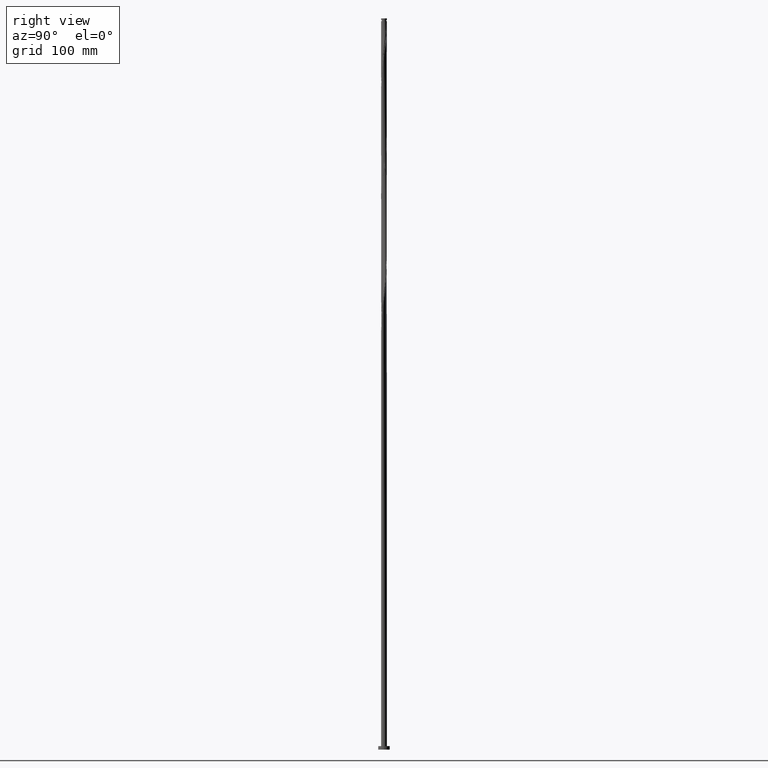
[diagram: clean part render]
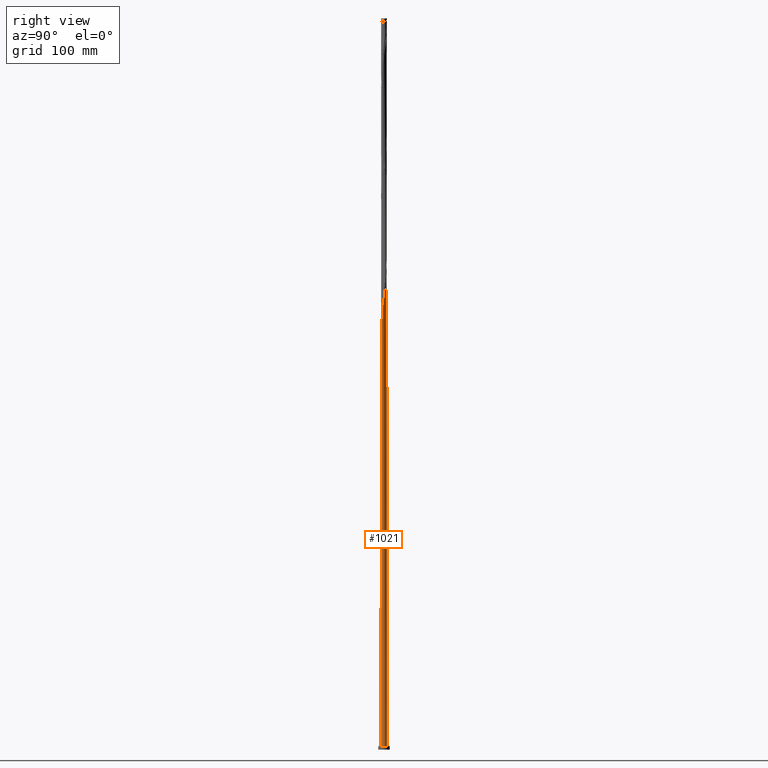
[diagram: same view with one face highlighted and labeled with its STEP entity id]
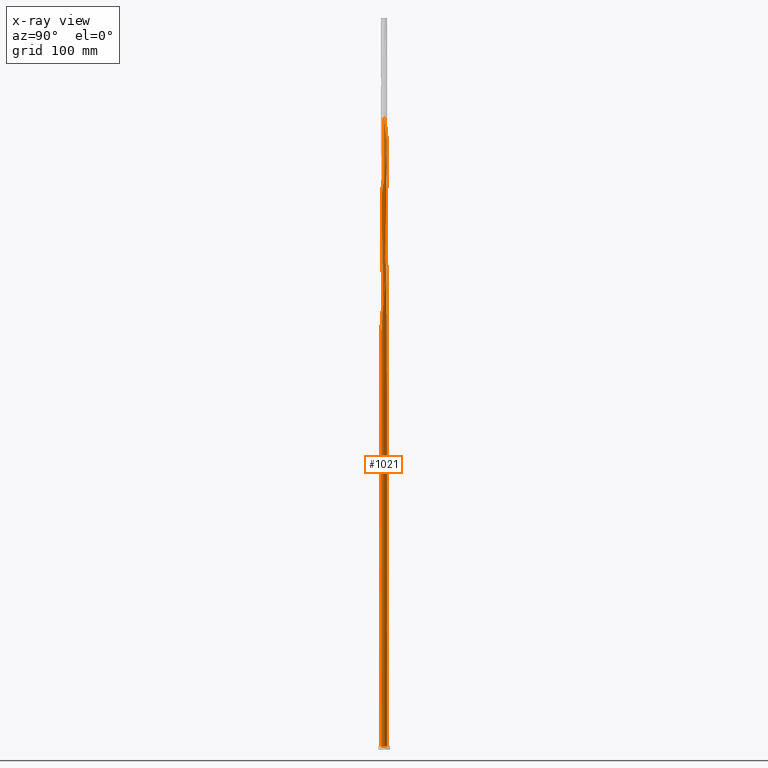
[diagram: x-ray of the same camera — body ghosted, the highlighted face saturated]
A machine part, right view. The second image highlights one B-rep face of the part: STEP entity #1021.
The next image is the same camera in x-ray: the body ghosted, the highlighted face saturated — about 0% of this face is hidden behind the body in this view.
In plain terms, the highlighted cylindrical surface (bore or boss wall) has radius 2.5 mm, axis along (-0, -0, -1).
Its self-contained STEP definition (entity closure, byte-faithful):
#2 = CARTESIAN_POINT ( 'NONE',  ( 2.326795562993845046, 0.9432329266279372293, 499.4139844700088133 ) ) ;
#4 = CARTESIAN_POINT ( 'NONE',  ( -2.113858851430209462, 1.354720156369233486, 332.6492785876559992 ) ) ;
#17 = CARTESIAN_POINT ( 'NONE',  ( 1.481733309335118154, 2.026852818003751278, 508.6786903523619117 ) ) ;
#30 = CARTESIAN_POINT ( 'NONE',  ( 1.282902032661899838, 2.145731198121513472, 510.2228079994205245 ) ) ;
#33 = DIRECTION ( 'NONE',  ( 1.000000000000000000, 0.000000000000000000, 0.000000000000000000 ) ) ;
#36 = VERTEX_POINT ( 'NONE', #830 ) ;
#38 = CIRCLE ( 'NONE', #1874, 2.500000000000000000 ) ;
#53 = DIRECTION ( 'NONE',  ( -0.000000000000000000, -0.000000000000000000, -1.000000000000000000 ) ) ;
#87 = CARTESIAN_POINT ( 'NONE',  ( 0.000000000000000000, 0.000000000000000000, 3.000000000000000000 ) ) ;
#96 = CARTESIAN_POINT ( 'NONE',  ( 1.153898870654155751, -2.229839308592888703, 369.7081021170677104 ) ) ;
#106 = CARTESIAN_POINT ( 'NONE',  ( -2.254949153017931085, 1.079446301259925134, 433.0169256464794216 ) ) ;
#114 = DIRECTION ( 'NONE',  ( 0.000000000000000000, -0.000000000000000000, -1.000000000000000000 ) ) ;
#116 = CARTESIAN_POINT ( 'NONE',  ( -0.6494914732466116059, -2.425247775387680882, 357.3551609405970453 ) ) ;
#127 = CARTESIAN_POINT ( 'NONE',  ( -1.481733309335118820, -2.026852818003750833, 351.1786903523617411 ) ) ;
#138 = CARTESIAN_POINT ( 'NONE',  ( 1.543983447371046758, -1.979843695872774090, 372.7963374111852204 ) ) ;
#148 = CARTESIAN_POINT ( 'NONE',  ( -1.481733309335118820, -2.026852818003750833, 456.1786903523616843 ) ) ;
#155 = CARTESIAN_POINT ( 'NONE',  ( -0.8667811146176461756, -2.344928676813478052, 460.8110432935382619 ) ) ;
#157 = CARTESIAN_POINT ( 'NONE',  ( -0.1927945373622882430, 2.503297068309350948, 317.2081021170676536 ) ) ;
#164 = CARTESIAN_POINT ( 'NONE',  ( 0.8667811146176472858, 2.344928676813478052, 513.3110432935382050 ) ) ;
#177 = CARTESIAN_POINT ( 'NONE',  ( 1.655335260655246721, 1.873463416998434106, 507.1345727053029577 ) ) ;
#178 = CARTESIAN_POINT ( 'NONE',  ( 0.03883662394902820392, 2.499698325126503029, 315.6639844700087565 ) ) ;
#191 = CARTESIAN_POINT ( 'NONE',  ( 2.414902095937017101, -0.6467208571238620696, 488.6051609405971021 ) ) ;
#214 = DIRECTION ( 'NONE',  ( 0.000000000000000000, 0.000000000000000000, 1.000000000000000000 ) ) ;
#225 = CARTESIAN_POINT ( 'NONE',  ( -2.500000000000004441, -2.838361252476003155E-16, 335.4775404011971887 ) ) ;
#227 = CARTESIAN_POINT ( 'NONE',  ( -2.500000000000004441, 1.165221987858569888E-15, 545.4775404011970750 ) ) ;
#253 = DIRECTION ( 'NONE',  ( 1.000000000000000000, 0.000000000000000000, 0.000000000000000000 ) ) ;
#265 = CARTESIAN_POINT ( 'NONE',  ( 1.282902032661899838, 2.145731198121513472, 405.2228079994205814 ) ) ;
#277 = CARTESIAN_POINT ( 'NONE',  ( 0.4974937185533176431, -2.450000000000002398, 365.0757491758913034 ) ) ;
#286 = EDGE_CURVE ( 'NONE', #36, #577, #684, .T. ) ;
#287 = CARTESIAN_POINT ( 'NONE',  ( -2.492618444334789185, 0.1919721098546209870, 439.1933962347147826 ) ) ;
#298 = CARTESIAN_POINT ( 'NONE',  ( -0.03883662394902854392, 2.499698325126506582, 414.4875138817736229 ) ) ;
#305 = CARTESIAN_POINT ( 'NONE',  ( -2.500000000000004441, 0.09612796971919773670, 334.8341346491375248 ) ) ;
#307 = CARTESIAN_POINT ( 'NONE',  ( 0.9392092612502228599, -2.316869863324618084, 368.1639844700088133 ) ) ;
#313 = CARTESIAN_POINT ( 'NONE',  ( -2.414902095937017101, 0.6467208571238628467, 331.1051609405970453 ) ) ;
#315 = CARTESIAN_POINT ( 'NONE',  ( -0.9392092612502235260, 2.316869863324618084, 525.6639844700086996 ) ) ;
#316 = ORIENTED_EDGE ( 'NONE', *, *, #1455, .F. ) ;
#317 = CARTESIAN_POINT ( 'NONE',  ( -2.220327207212025034, 1.148976541498583970, 334.1933962347147826 ) ) ;
#318 =( BOUNDED_CURVE ( )  B_SPLINE_CURVE ( 2, ( #1762, #1101, #961, #353, #980, #1465, #317, #4, #1921, #493, #1290, #1941, #952, #1792, #1594, #361, #988, #157, #178, #2063, #1259 ),
 .UNSPECIFIED., .F., .T. ) 
 B_SPLINE_CURVE_WITH_KNOTS ( ( 3, 2, 2, 2, 2, 2, 2, 2, 2, 2, 3 ),
 ( 0.9295293573162904943, 0.9338235294117647189, 0.9411764705882352811, 0.9485294117647058432, 0.9558823529411765163, 0.9632352941176470784, 0.9705882352941176405, 0.9779411764705882026, 0.9852941176470588758, 0.9926470588235294379, 1.000000000000000000 ),
 .UNSPECIFIED. ) 
 CURVE ( )  GEOMETRIC_REPRESENTATION_ITEM ( )  RATIONAL_B_SPLINE_CURVE ( ( 0.9072066346053750951, 0.9068261157891421842, 0.9090909090910135326, 0.9052128875410444531, 0.9090909090910135326, 0.9052128875410444531, 0.9090909090910135326, 0.9052128875410444531, 0.9090909090910135326, 0.9052128875410444531, 0.9090909090910135326, 0.9052128875410444531, 0.9090909090910135326, 0.9052128875410444531, 0.9090909090910135326, 0.9052128875410444531, 0.9090909090910135326, 0.9052128875410444531, 0.9090909090910135326, 0.9052128875410444531, 0.9090909090910135326 ) ) 
 REPRESENTATION_ITEM ( '' )  );
#326 = CARTESIAN_POINT ( 'NONE',  ( -0.6494914732466116059, -2.425247775387680882, 462.3551609405969884 ) ) ;
#340 = CARTESIAN_POINT ( 'NONE',  ( -1.153898870654155751, 2.229839308592888703, 527.2081021170675967 ) ) ;
#346 = LINE ( 'NONE', #1596, #1380 ) ;
#352 = CARTESIAN_POINT ( 'NONE',  ( 0.03883662394902780840, -2.499698325126506582, 466.9875138817735660 ) ) ;
#353 = CARTESIAN_POINT ( 'NONE',  ( -2.460496042343400358, 0.4996250308535268303, 338.8257491758912465 ) ) ;
#361 = CARTESIAN_POINT ( 'NONE',  ( -0.6494914732466096075, 2.425247775387677329, 320.2963374111853341 ) ) ;
#365 = DIRECTION ( 'NONE',  ( 0.000000000000000000, 0.000000000000000000, 1.000000000000000000 ) ) ;
#371 = CARTESIAN_POINT ( 'NONE',  ( 0.000000000000000000, 0.000000000000000000, 630.0000000000000000 ) ) ;
#411 = CYLINDRICAL_SURFACE ( 'NONE', #940, 2.500000000000000000 ) ;
#421 = CARTESIAN_POINT ( 'NONE',  ( 0.6494914732466108287, 2.425247775387680882, 409.8551609405971021 ) ) ;
#423 = CIRCLE ( 'NONE', #1559, 2.500000000000000000 ) ;
#429 = CARTESIAN_POINT ( 'NONE',  ( 0.000000000000000000, 0.000000000000000000, 312.5757491758911897 ) ) ;
#434 = CARTESIAN_POINT ( 'NONE',  ( -1.712736483481400063, 1.821135288261635621, 426.8404550582440606 ) ) ;
#444 = CARTESIAN_POINT ( 'NONE',  ( -1.084070755988681523, -2.264609578239276111, 354.2669256464794216 ) ) ;
#453 = CARTESIAN_POINT ( 'NONE',  ( 2.485451661177049854, 0.2693140173705520501, 389.7816315288324631 ) ) ;
#463 = CARTESIAN_POINT ( 'NONE',  ( -2.414902095937017101, 0.6467208571238628467, 436.1051609405970453 ) ) ;
#468 = CARTESIAN_POINT ( 'NONE',  ( -1.881489519591753146, 1.662426880650496708, 323.3845727053029577 ) ) ;
#474 = CARTESIAN_POINT ( 'NONE',  ( 2.354974583215147632, -0.8704944906509075597, 487.0610432935381482 ) ) ;
#484 = CARTESIAN_POINT ( 'NONE',  ( -1.655335260655246277, -1.873463416998434328, 454.6345727053031283 ) ) ;
#492 = CARTESIAN_POINT ( 'NONE',  ( -2.354974583215148076, 0.8704944906509070046, 539.5610432935380913 ) ) ;
#493 = CARTESIAN_POINT ( 'NONE',  ( -1.828937211975369959, 1.720074015993116268, 329.5610432935383187 ) ) ;
#501 = CARTESIAN_POINT ( 'NONE',  ( 2.485451661177049854, 0.2693140173705520501, 494.7816315288323494 ) ) ;
#514 = CARTESIAN_POINT ( 'NONE',  ( -1.543983447371047202, 1.979843695872773646, 530.2963374111851635 ) ) ;
#517 = CARTESIAN_POINT ( 'NONE',  ( 0.000000000000000000, 0.000000000000000000, 3.000000000000000000 ) ) ;
#527 = CARTESIAN_POINT ( 'NONE',  ( -2.500000000000000000, 0.000000000000000000, 630.0000000000000000 ) ) ;
#536 =( BOUNDED_CURVE ( )  B_SPLINE_CURVE ( 2, ( #225, #862, #721, #701, #569, #1332, #1181, #550, #870, #1832, #1034, #127, #1081, #444, #1739, #116, #1396, #1373, #1410, #2033, #277, #1363, #307, #96, #1536, #138, #1061, #741, #1894, #1851, #2005, #750, #911, #1525, #1072, #931, #453, #1549, #2045, #770, #580, #2024, #1198, #1211, #592, #604, #265, #1572, #2016, #421, #1052, #759, #298, #1883, #1702, #616, #1220, #780, #1862, #902, #434, #1090, #1384, #1872, #106, #1711, #463, #1722, #287, #921, #1563, #1231, #1732, #625, #1241, #1583, #951, #1622, #484, #148, #1288, #792, #155, #326, #1138, #1920, #352, #1929, #960, #1464, #1612, #1422, #2052, #971, #1275, #1129, #979, #667, #1761, #474, #191, #1099, #1601, #1781, #501, #637, #1453, #2, #832, #799, #1249, #1257, #177, #17, #30, #1901, #164, #808, #1443, #817, #676, #658, #1266, #1940, #315, #340, #1592, #514, #1790, #942, #1749, #1431, #2061, #492, #1121, #1910, #649, #1772, #1110 ),
 .UNSPECIFIED., .F., .T. ) 
 B_SPLINE_CURVE_WITH_KNOTS ( ( 3, 2, 2, 2, 2, 2, 2, 2, 2, 2, 2, 2, 2, 2, 2, 2, 2, 2, 2, 2, 2, 2, 2, 2, 2, 2, 2, 2, 2, 2, 2, 2, 2, 2, 2, 2, 2, 2, 2, 2, 2, 2, 2, 2, 2, 2, 2, 2, 2, 2, 2, 2, 2, 2, 2, 2, 2, 2, 2, 2, 2, 2, 2, 2, 2, 2, 2, 2, 2, 3 ),
 ( 0.05452935731629057065, 0.05882352941176471894, 0.06617647058823528106, 0.07352941176470584317, 0.08088235294117651630, 0.08823529411764707842, 0.09558823529411764053, 0.1029411764705882026, 0.1102941176470588758, 0.1176470588235294379, 0.1250000000000000000, 0.1323529411764705621, 0.1397058823529411242, 0.1470588235294117974, 0.1544117647058823595, 0.1617647058823529216, 0.1691176470588234837, 0.1764705882352941568, 0.1838235294117647189, 0.1911764705882352811, 0.1985294117647058432, 0.2058823529411765163, 0.2132352941176470784, 0.2205882352941176405, 0.2279411764705882026, 0.2352941176470588758, 0.2426470588235294379, 0.2500000000000000000, 0.2573529411764705621, 0.2647058823529411242, 0.2720588235294117974, 0.2794117647058823595, 0.2867647058823529216, 0.2941176470588234837, 0.3014705882352941568, 0.3088235294117647189, 0.3161764705882352811, 0.3235294117647058432, 0.3308823529411765163, 0.3382352941176470784, 0.3455882352941176405, 0.3529411764705882026, 0.3602941176470588758, 0.3676470588235294379, 0.3750000000000000000, 0.3823529411764705621, 0.3897058823529411242, 0.3970588235294117974, 0.4044117647058823595, 0.4117647058823529216, 0.4191176470588234837, 0.4264705882352941568, 0.4338235294117647189, 0.4411764705882352811, 0.4485294117647058432, 0.4558823529411765163, 0.4632352941176470784, 0.4705882352941176405, 0.4779411764705882026, 0.4852941176470588758, 0.4926470588235294379, 0.5000000000000000000, 0.5073529411764705621, 0.5147058823529411242, 0.5220588235294116863, 0.5294117647058823595, 0.5367647058823529216, 0.5441176470588235947, 0.5514705882352941568, 0.5545293573162906053 ),
 .UNSPECIFIED. ) 
 CURVE ( )  GEOMETRIC_REPRESENTATION_ITEM ( )  RATIONAL_B_SPLINE_CURVE ( ( 0.9072066346053822006, 0.9068261157891492896, 0.9090909090910207491, 0.9052128875410516695, 0.9090909090910207491, 0.9052128875410516695, 0.9090909090910207491, 0.9052128875410516695, 0.9090909090910207491, 0.9052128875410516695, 0.9090909090910207491, 0.9052128875410516695, 0.9090909090910207491, 0.9052128875410516695, 0.9090909090910207491, 0.9052128875410516695, 0.9090909090910207491, 0.9052128875410516695, 0.9090909090910207491, 0.9052128875410516695, 0.9090909090910207491, 0.9052128875410516695, 0.9090909090910207491, 0.9052128875410516695, 0.9090909090910207491, 0.9052128875410516695, 0.9090909090910207491, 0.9052128875410516695, 0.9090909090910207491, 0.9052128875410516695, 0.9090909090910207491, 0.9052128875410516695, 0.9090909090910207491, 0.9052128875410516695, 0.9090909090910207491, 0.9052128875410516695, 0.9090909090910207491, 0.9052128875410516695, 0.9090909090910207491, 0.9052128875410516695, 0.9090909090910207491, 0.9052128875410516695, 0.9090909090910207491, 0.9052128875410516695, 0.9090909090910207491, 0.9052128875410516695, 0.9090909090910207491, 0.9052128875410516695, 0.9090909090910207491, 0.9052128875410516695, 0.9090909090910207491, 0.9052128875410516695, 0.9090909090910207491, 0.9052128875410516695, 0.9090909090910207491, 0.9052128875410516695, 0.9090909090910207491, 0.9052128875410516695, 0.9090909090910207491, 0.9052128875410516695, 0.9090909090910207491, 0.9052128875410516695, 0.9090909090910207491, 0.9052128875410516695, 0.9090909090910207491, 0.9052128875410516695, 0.9090909090910207491, 0.9052128875410516695, 0.9090909090910207491, 0.9052128875410516695, 0.9090909090910207491, 0.9052128875410516695, 0.9090909090910207491, 0.9052128875410516695, 0.9090909090910207491, 0.9052128875410516695, 0.9090909090910207491, 0.9052128875410516695, 0.9090909090910207491, 0.9052128875410516695, 0.9090909090910207491, 0.9052128875410516695, 0.9090909090910207491, 0.9052128875410516695, 0.9090909090910207491, 0.9052128875410516695, 0.9090909090910207491, 0.9052128875410516695, 0.9090909090910207491, 0.9052128875410516695, 0.9090909090910207491, 0.9052128875410516695, 0.9090909090910207491, 0.9052128875410516695, 0.9090909090910207491, 0.9052128875410516695, 0.9090909090910207491, 0.9052128875410516695, 0.9090909090910207491, 0.9052128875410516695, 0.9090909090910207491, 0.9052128875410516695, 0.9090909090910207491, 0.9052128875410516695, 0.9090909090910207491, 0.9052128875410516695, 0.9090909090910207491, 0.9052128875410516695, 0.9090909090910207491, 0.9052128875410516695, 0.9090909090910207491, 0.9052128875410516695, 0.9090909090910207491, 0.9052128875410516695, 0.9090909090910207491, 0.9052128875410516695, 0.9090909090910207491, 0.9052128875410516695, 0.9090909090910207491, 0.9052128875410516695, 0.9090909090910207491, 0.9052128875410516695, 0.9090909090910207491, 0.9052128875410516695, 0.9090909090910207491, 0.9052128875410516695, 0.9090909090910207491, 0.9052128875410516695, 0.9090909090910207491, 0.9052128875410516695, 0.9090909090910207491, 0.9052128875410516695, 0.9090909090910207491, 0.9052128875410516695, 0.9090909090910207491, 0.9052128875410516695, 0.9090909090910207491, 0.9074776808429229069, 0.9072066346053822006 ) ) 
 REPRESENTATION_ITEM ( '' )  );
#550 = CARTESIAN_POINT ( 'NONE',  ( -2.113858851430213459, -1.354720156369235484, 345.0022197641264938 ) ) ;
#555 = CARTESIAN_POINT ( 'NONE',  ( -0.4974937185533173101, 2.450000000000002398, 312.5757491758911897 ) ) ;
#561 = ORIENTED_EDGE ( 'NONE', *, *, #967, .F. ) ;
#565 = EDGE_CURVE ( 'NONE', #566, #1665, #423, .T. ) ;
#566 = VERTEX_POINT ( 'NONE', #1467 ) ;
#569 = CARTESIAN_POINT ( 'NONE',  ( -2.393645802668625144, -0.7214289787407315302, 340.3698668229502005 ) ) ;
#577 = VERTEX_POINT ( 'NONE', #1627 ) ;
#580 = CARTESIAN_POINT ( 'NONE',  ( 2.220327207212029030, 1.148976541498586190, 395.9581021170677104 ) ) ;
#592 = CARTESIAN_POINT ( 'NONE',  ( 1.655335260655246721, 1.873463416998434106, 402.1345727053029577 ) ) ;
#604 = CARTESIAN_POINT ( 'NONE',  ( 1.481733309335118154, 2.026852818003751278, 403.6786903523616843 ) ) ;
#608 = EDGE_CURVE ( 'NONE', #943, #1729, #346, .T. ) ;
#612 = CARTESIAN_POINT ( 'NONE',  ( -2.492618444334789185, 0.1919721098546209870, 334.1933962347148395 ) ) ;
#616 = CARTESIAN_POINT ( 'NONE',  ( -0.7245196518462911905, 2.403900418056346133, 419.1198668229500868 ) ) ;
#625 = CARTESIAN_POINT ( 'NONE',  ( -2.326795562993845046, -0.9432329266279370072, 446.9139844700088702 ) ) ;
#637 = CARTESIAN_POINT ( 'NONE',  ( 2.460496042343404799, 0.4996250308535267193, 496.3257491758913034 ) ) ;
#638 = ORIENTED_EDGE ( 'NONE', *, *, #1147, .T. ) ;
#649 = CARTESIAN_POINT ( 'NONE',  ( -2.492618444334789185, 0.1919721098546209870, 544.1933962347147826 ) ) ;
#658 = CARTESIAN_POINT ( 'NONE',  ( -0.2704677852603450394, 2.496099581943659995, 521.0316315288323494 ) ) ;
#667 = CARTESIAN_POINT ( 'NONE',  ( 2.154923722820714538, -1.288398111868943596, 483.9728079994205814 ) ) ;
#676 = CARTESIAN_POINT ( 'NONE',  ( -0.03883662394902854392, 2.499698325126506582, 519.4875138817735660 ) ) ;
#684 =( BOUNDED_CURVE ( )  B_SPLINE_CURVE ( 2, ( #555, #737, #887, #1357, #2002, #1205, #1579, #468, #1887, #1104, #1569, #948, #313, #1543, #612, #305, #1086 ),
 .UNSPECIFIED., .F., .T. ) 
 B_SPLINE_CURVE_WITH_KNOTS ( ( 3, 2, 2, 2, 2, 2, 2, 2, 3 ),
 ( 0.000000000000000000, 0.007352941176470562112, 0.01470588235294112422, 0.02205882352941179736, 0.02941176470588235947, 0.03676470588235291465, 0.04411764705882348370, 0.05147058823529415683, 0.05452935731629057065 ),
 .UNSPECIFIED. ) 
 CURVE ( )  GEOMETRIC_REPRESENTATION_ITEM ( )  RATIONAL_B_SPLINE_CURVE ( ( 0.9090909090910207491, 0.9052128875410516695, 0.9090909090910207491, 0.9052128875410516695, 0.9090909090910207491, 0.9052128875410516695, 0.9090909090910207491, 0.9052128875410516695, 0.9090909090910207491, 0.9052128875410516695, 0.9090909090910207491, 0.9052128875410516695, 0.9090909090910207491, 0.9052128875410516695, 0.9090909090910207491, 0.9074776808429230179, 0.9072066346053822006 ) ) 
 REPRESENTATION_ITEM ( '' )  );
#686 = CARTESIAN_POINT ( 'NONE',  ( -2.500000000000000000, 5.676722504952050684E-16, 342.1739579505852475 ) ) ;
#687 = DIRECTION ( 'NONE',  ( -0.000000000000000000, -0.000000000000000000, -1.000000000000000000 ) ) ;
#701 = CARTESIAN_POINT ( 'NONE',  ( -2.460496042343404799, -0.4996250308535269968, 338.8257491758912465 ) ) ;
#721 = CARTESIAN_POINT ( 'NONE',  ( -2.485451661177049854, -0.2693140173705516061, 337.2816315288323494 ) ) ;
#737 = CARTESIAN_POINT ( 'NONE',  ( -0.7245196518462911905, 2.403900418056346133, 314.1198668229499731 ) ) ;
#741 = CARTESIAN_POINT ( 'NONE',  ( 1.881489519591752924, -1.662426880650497152, 375.8845727053030714 ) ) ;
#750 = CARTESIAN_POINT ( 'NONE',  ( 2.354974583215147632, -0.8704944906509075597, 382.0610432935382619 ) ) ;
#757 = VERTEX_POINT ( 'NONE', #845 ) ;
#759 = CARTESIAN_POINT ( 'NONE',  ( 0.1927945373622899083, 2.503297068309353168, 412.9433962347147258 ) ) ;
#760 = ORIENTED_EDGE ( 'NONE', *, *, #1333, .F. ) ;
#770 = CARTESIAN_POINT ( 'NONE',  ( 2.326795562993845046, 0.9432329266279372293, 394.4139844700088702 ) ) ;
#780 = CARTESIAN_POINT ( 'NONE',  ( -1.153898870654155751, 2.229839308592888703, 422.2081021170675967 ) ) ;
#792 = CARTESIAN_POINT ( 'NONE',  ( -1.084070755988681523, -2.264609578239276111, 459.2669256464793079 ) ) ;
#799 = CARTESIAN_POINT ( 'NONE',  ( 2.113858851430213459, 1.354720156369234596, 502.5022197641264370 ) ) ;
#808 = CARTESIAN_POINT ( 'NONE',  ( 0.6494914732466108287, 2.425247775387680882, 514.8551609405971021 ) ) ;
#817 = CARTESIAN_POINT ( 'NONE',  ( 0.1927945373622899083, 2.503297068309353168, 517.9433962347147826 ) ) ;
#823 = DIRECTION ( 'NONE',  ( -0.000000000000000000, -0.000000000000000000, -1.000000000000000000 ) ) ;
#830 = CARTESIAN_POINT ( 'NONE',  ( -0.4974937185533173101, 2.450000000000002398, 312.5757491758911897 ) ) ;
#832 = CARTESIAN_POINT ( 'NONE',  ( 2.220327207212029030, 1.148976541498586190, 500.9581021170675967 ) ) ;
#845 = CARTESIAN_POINT ( 'NONE',  ( 0.4974937185533181982, 2.449999999999997957, 312.5757491758911897 ) ) ;
#862 = CARTESIAN_POINT ( 'NONE',  ( -2.500000000000004441, -0.1350499591981700609, 336.3814596332099427 ) ) ;
#870 = CARTESIAN_POINT ( 'NONE',  ( -1.971398031702793263, -1.537397086181176764, 346.5463374111853341 ) ) ;
#887 = CARTESIAN_POINT ( 'NONE',  ( -0.9392092612502235260, 2.316869863324618084, 315.6639844700088133 ) ) ;
#902 = CARTESIAN_POINT ( 'NONE',  ( -1.543983447371047202, 1.979843695872773646, 425.2963374111854478 ) ) ;
#911 = CARTESIAN_POINT ( 'NONE',  ( 2.414902095937017101, -0.6467208571238620696, 383.6051609405971021 ) ) ;
#921 = CARTESIAN_POINT ( 'NONE',  ( -2.510407280010694908, -0.03900300388757643733, 440.7375138817735660 ) ) ;
#931 = CARTESIAN_POINT ( 'NONE',  ( 2.510407280010694464, 0.03900300388757734632, 388.2375138817736229 ) ) ;
#940 = AXIS2_PLACEMENT_3D ( 'NONE', #371, #687, #1316 ) ;
#942 = CARTESIAN_POINT ( 'NONE',  ( -1.881489519591753146, 1.662426880650496708, 533.3845727053029577 ) ) ;
#943 = VERTEX_POINT ( 'NONE', #227 ) ;
#948 = CARTESIAN_POINT ( 'NONE',  ( -2.354974583215148076, 0.8704944906509070046, 329.5610432935383187 ) ) ;
#951 = CARTESIAN_POINT ( 'NONE',  ( -1.971398031702793263, -1.537397086181176764, 451.5463374111852772 ) ) ;
#952 = CARTESIAN_POINT ( 'NONE',  ( -1.282902032661897174, 2.145731198121509919, 324.9286903523617980 ) ) ;
#960 = CARTESIAN_POINT ( 'NONE',  ( 0.4974937185533176431, -2.450000000000002398, 470.0757491758912465 ) ) ;
#961 = CARTESIAN_POINT ( 'NONE',  ( -2.485451661177044524, 0.2693140173705519946, 340.3698668229500299 ) ) ;
#967 = EDGE_CURVE ( 'NONE', #1729, #757, #318, .T. ) ;
#971 = CARTESIAN_POINT ( 'NONE',  ( 1.543983447371046758, -1.979843695872774090, 477.7963374111853341 ) ) ;
#972 = FACE_OUTER_BOUND ( 'NONE', #1993, .T. ) ;
#979 = CARTESIAN_POINT ( 'NONE',  ( 2.018206621206233731, -1.475412496259720152, 482.4286903523617411 ) ) ;
#980 = CARTESIAN_POINT ( 'NONE',  ( -2.393645802668620703, 0.7214289787407309751, 337.2816315288322926 ) ) ;
#988 = CARTESIAN_POINT ( 'NONE',  ( -0.4211430053044488142, 2.464272421848513250, 318.7522197641266075 ) ) ;
#1021 = ADVANCED_FACE ( 'NONE', ( #972 ), #411, .T. ) ;
#1034 = CARTESIAN_POINT ( 'NONE',  ( -1.655335260655246277, -1.873463416998434328, 349.6345727053030714 ) ) ;
#1052 = CARTESIAN_POINT ( 'NONE',  ( 0.4211430053044503130, 2.464272421848518135, 411.3992785876557718 ) ) ;
#1061 = CARTESIAN_POINT ( 'NONE',  ( 1.712736483481400285, -1.821135288261634955, 374.3404550582440606 ) ) ;
#1072 = CARTESIAN_POINT ( 'NONE',  ( 2.492618444334789185, -0.1919721098546218196, 386.6933962347146689 ) ) ;
#1081 = CARTESIAN_POINT ( 'NONE',  ( -1.282902032661900282, -2.145731198121513028, 352.7228079994206382 ) ) ;
#1086 = CARTESIAN_POINT ( 'NONE',  ( -2.500000000000004441, -2.838361252476003155E-16, 335.4775404011971887 ) ) ;
#1090 = CARTESIAN_POINT ( 'NONE',  ( -1.881489519591753146, 1.662426880650496708, 428.3845727053028440 ) ) ;
#1099 = CARTESIAN_POINT ( 'NONE',  ( 2.474829608658885238, -0.4229472235968187999, 490.1492785876558287 ) ) ;
#1101 = CARTESIAN_POINT ( 'NONE',  ( -2.499999999999999556, 0.1350499591981678960, 341.2700387185726072 ) ) ;
#1104 = CARTESIAN_POINT ( 'NONE',  ( -2.154923722820714538, 1.288398111868943596, 326.4728079994205814 ) ) ;
#1110 = CARTESIAN_POINT ( 'NONE',  ( -2.500000000000004441, 1.165221987858569888E-15, 545.4775404011970750 ) ) ;
#1121 = CARTESIAN_POINT ( 'NONE',  ( -2.414902095937017101, 0.6467208571238628467, 541.1051609405971021 ) ) ;
#1129 = CARTESIAN_POINT ( 'NONE',  ( 1.881489519591752924, -1.662426880650497152, 480.8845727053030714 ) ) ;
#1138 = CARTESIAN_POINT ( 'NONE',  ( -0.4211430053044500355, -2.464272421848518135, 463.8992785876558855 ) ) ;
#1147 = EDGE_CURVE ( 'NONE', #1665, #566, #38, .T. ) ;
#1161 = CIRCLE ( 'NONE', #1810, 2.500000000000000000 ) ;
#1181 = CARTESIAN_POINT ( 'NONE',  ( -2.220327207212029030, -1.148976541498586190, 343.4581021170675967 ) ) ;
#1198 = CARTESIAN_POINT ( 'NONE',  ( 1.971398031702792819, 1.537397086181178096, 399.0463374111852772 ) ) ;
#1205 = CARTESIAN_POINT ( 'NONE',  ( -1.543983447371047202, 1.979843695872773646, 320.2963374111852772 ) ) ;
#1211 = CARTESIAN_POINT ( 'NONE',  ( 1.828937211975373289, 1.720074015993118932, 400.5904550582440606 ) ) ;
#1220 = CARTESIAN_POINT ( 'NONE',  ( -0.9392092612502235260, 2.316869863324618084, 420.6639844700087565 ) ) ;
#1231 = CARTESIAN_POINT ( 'NONE',  ( -2.460496042343404799, -0.4996250308535269968, 443.8257491758911897 ) ) ;
#1241 = CARTESIAN_POINT ( 'NONE',  ( -2.220327207212029030, -1.148976541498586190, 448.4581021170677673 ) ) ;
#1249 = CARTESIAN_POINT ( 'NONE',  ( 1.971398031702792819, 1.537397086181178096, 504.0463374111853341 ) ) ;
#1257 = CARTESIAN_POINT ( 'NONE',  ( 1.828937211975373289, 1.720074015993118932, 505.5904550582441743 ) ) ;
#1259 = CARTESIAN_POINT ( 'NONE',  ( 0.4974937185533181427, 2.449999999999997513, 312.5757491758911897 ) ) ;
#1266 = CARTESIAN_POINT ( 'NONE',  ( -0.4974937185533173101, 2.450000000000002398, 522.5757491758911328 ) ) ;
#1275 = CARTESIAN_POINT ( 'NONE',  ( 1.712736483481400285, -1.821135288261634955, 479.3404550582442312 ) ) ;
#1288 = CARTESIAN_POINT ( 'NONE',  ( -1.282902032661900282, -2.145731198121513028, 457.7228079994206382 ) ) ;
#1290 = CARTESIAN_POINT ( 'NONE',  ( -1.655335260655242724, 1.873463416998431441, 328.0169256464794216 ) ) ;
#1316 = DIRECTION ( 'NONE',  ( -1.000000000000000000, 0.000000000000000000, 0.000000000000000000 ) ) ;
#1332 = CARTESIAN_POINT ( 'NONE',  ( -2.326795562993845046, -0.9432329266279370072, 341.9139844700086996 ) ) ;
#1333 = EDGE_CURVE ( 'NONE', #577, #1665, #1691, .T. ) ;
#1357 = CARTESIAN_POINT ( 'NONE',  ( -1.153898870654155751, 2.229839308592888703, 317.2081021170675967 ) ) ;
#1363 = CARTESIAN_POINT ( 'NONE',  ( 0.7245196518462914126, -2.403900418056346133, 366.6198668229500868 ) ) ;
#1370 = ORIENTED_EDGE ( 'NONE', *, *, #608, .F. ) ;
#1373 = CARTESIAN_POINT ( 'NONE',  ( -0.1927945373622895475, -2.503297068309354056, 360.4433962347147826 ) ) ;
#1380 = VECTOR ( 'NONE', #823, 1000.000000000000000 ) ;
#1384 = CARTESIAN_POINT ( 'NONE',  ( -2.018206621206233731, 1.475412496259720152, 429.9286903523619117 ) ) ;
#1396 = CARTESIAN_POINT ( 'NONE',  ( -0.4211430053044500355, -2.464272421848518135, 358.8992785876559424 ) ) ;
#1410 = CARTESIAN_POINT ( 'NONE',  ( 0.03883662394902780840, -2.499698325126506582, 361.9875138817735092 ) ) ;
#1422 = CARTESIAN_POINT ( 'NONE',  ( 1.153898870654155751, -2.229839308592888703, 474.7081021170677104 ) ) ;
#1431 = CARTESIAN_POINT ( 'NONE',  ( -2.154923722820714538, 1.288398111868943596, 536.4728079994206382 ) ) ;
#1443 = CARTESIAN_POINT ( 'NONE',  ( 0.4211430053044503130, 2.464272421848518135, 516.3992785876558855 ) ) ;
#1453 = CARTESIAN_POINT ( 'NONE',  ( 2.393645802668625588, 0.7214289787407308641, 497.8698668229500868 ) ) ;
#1455 = EDGE_CURVE ( 'NONE', #577, #943, #536, .T. ) ;
#1464 = CARTESIAN_POINT ( 'NONE',  ( 0.7245196518462914126, -2.403900418056346133, 471.6198668229500299 ) ) ;
#1465 = CARTESIAN_POINT ( 'NONE',  ( -2.326795562993841937, 0.9432329266279356750, 335.7375138817736797 ) ) ;
#1467 = CARTESIAN_POINT ( 'NONE',  ( 2.500000000000000000, 0.000000000000000000, 3.000000000000000000 ) ) ;
#1473 = VECTOR ( 'NONE', #53, 1000.000000000000000 ) ;
#1525 = CARTESIAN_POINT ( 'NONE',  ( 2.474829608658885238, -0.4229472235968187999, 385.1492785876558287 ) ) ;
#1536 = CARTESIAN_POINT ( 'NONE',  ( 1.348941159012601698, -2.104841502232830397, 371.2522197641266075 ) ) ;
#1543 = CARTESIAN_POINT ( 'NONE',  ( -2.474829608658885238, 0.4229472235968189109, 332.6492785876559992 ) ) ;
#1549 = CARTESIAN_POINT ( 'NONE',  ( 2.460496042343404799, 0.4996250308535267193, 391.3257491758912465 ) ) ;
#1559 = AXIS2_PLACEMENT_3D ( 'NONE', #517, #365, #33 ) ;
#1563 = CARTESIAN_POINT ( 'NONE',  ( -2.485451661177049854, -0.2693140173705516061, 442.2816315288324063 ) ) ;
#1569 = CARTESIAN_POINT ( 'NONE',  ( -2.254949153017931085, 1.079446301259925134, 328.0169256464795353 ) ) ;
#1572 = CARTESIAN_POINT ( 'NONE',  ( 1.084070755988681523, 2.264609578239276111, 406.7669256464793648 ) ) ;
#1579 = CARTESIAN_POINT ( 'NONE',  ( -1.712736483481400063, 1.821135288261635621, 321.8404550582440606 ) ) ;
#1583 = CARTESIAN_POINT ( 'NONE',  ( -2.113858851430213459, -1.354720156369235484, 450.0022197641264938 ) ) ;
#1587 = EDGE_CURVE ( 'NONE', #36, #757, #1161, .T. ) ;
#1592 = CARTESIAN_POINT ( 'NONE',  ( -1.348941159012601254, 2.104841502232830841, 528.7522197641267212 ) ) ;
#1594 = CARTESIAN_POINT ( 'NONE',  ( -0.8667811146176438442, 2.344928676813474944, 321.8404550582440606 ) ) ;
#1596 = CARTESIAN_POINT ( 'NONE',  ( -2.500000000000000000, 0.000000000000000000, 630.0000000000000000 ) ) ;
#1601 = CARTESIAN_POINT ( 'NONE',  ( 2.492618444334789185, -0.1919721098546218196, 491.6933962347146689 ) ) ;
#1612 = CARTESIAN_POINT ( 'NONE',  ( 0.9392092612502228599, -2.316869863324618084, 473.1639844700089270 ) ) ;
#1622 = CARTESIAN_POINT ( 'NONE',  ( -1.828937211975373289, -1.720074015993118932, 453.0904550582442880 ) ) ;
#1627 = CARTESIAN_POINT ( 'NONE',  ( -2.500000000000004441, -2.838361252476003155E-16, 335.4775404011971887 ) ) ;
#1631 = CARTESIAN_POINT ( 'NONE',  ( -2.500000000000000000, 0.000000000000000000, 3.000000000000000000 ) ) ;
#1665 = VERTEX_POINT ( 'NONE', #1631 ) ;
#1669 = ORIENTED_EDGE ( 'NONE', *, *, #1333, .T. ) ;
#1679 = ORIENTED_EDGE ( 'NONE', *, *, #286, .F. ) ;
#1691 = LINE ( 'NONE', #527, #1473 ) ;
#1702 = CARTESIAN_POINT ( 'NONE',  ( -0.4974937185533173101, 2.450000000000002398, 417.5757491758911328 ) ) ;
#1711 = CARTESIAN_POINT ( 'NONE',  ( -2.354974583215148076, 0.8704944906509070046, 434.5610432935382050 ) ) ;
#1722 = CARTESIAN_POINT ( 'NONE',  ( -2.474829608658885238, 0.4229472235968189109, 437.6492785876558287 ) ) ;
#1729 = VERTEX_POINT ( 'NONE', #686 ) ;
#1732 = CARTESIAN_POINT ( 'NONE',  ( -2.393645802668625144, -0.7214289787407315302, 445.3698668229499162 ) ) ;
#1739 = CARTESIAN_POINT ( 'NONE',  ( -0.8667811146176461756, -2.344928676813478052, 355.8110432935382050 ) ) ;
#1749 = CARTESIAN_POINT ( 'NONE',  ( -2.018206621206233731, 1.475412496259720152, 534.9286903523616274 ) ) ;
#1761 = CARTESIAN_POINT ( 'NONE',  ( 2.254949153017931085, -1.079446301259925356, 485.5169256464794785 ) ) ;
#1762 = CARTESIAN_POINT ( 'NONE',  ( -2.500000000000000000, 5.676722504952049697E-16, 342.1739579505852475 ) ) ;
#1772 = CARTESIAN_POINT ( 'NONE',  ( -2.500000000000004885, 0.09612796971919665423, 544.8341346491375816 ) ) ;
#1781 = CARTESIAN_POINT ( 'NONE',  ( 2.510407280010694464, 0.03900300388757734632, 493.2375138817735660 ) ) ;
#1790 = CARTESIAN_POINT ( 'NONE',  ( -1.712736483481400063, 1.821135288261635621, 531.8404550582441743 ) ) ;
#1792 = CARTESIAN_POINT ( 'NONE',  ( -1.084070755988679524, 2.264609578239272558, 323.3845727053030714 ) ) ;
#1810 = AXIS2_PLACEMENT_3D ( 'NONE', #429, #114, #2022 ) ;
#1832 = CARTESIAN_POINT ( 'NONE',  ( -1.828937211975373289, -1.720074015993118932, 348.0904550582441743 ) ) ;
#1835 = ORIENTED_EDGE ( 'NONE', *, *, #1587, .T. ) ;
#1851 = CARTESIAN_POINT ( 'NONE',  ( 2.154923722820714538, -1.288398111868943596, 378.9728079994205814 ) ) ;
#1862 = CARTESIAN_POINT ( 'NONE',  ( -1.348941159012601254, 2.104841502232830841, 423.7522197641264938 ) ) ;
#1872 = CARTESIAN_POINT ( 'NONE',  ( -2.154923722820714538, 1.288398111868943596, 431.4728079994206382 ) ) ;
#1874 = AXIS2_PLACEMENT_3D ( 'NONE', #87, #214, #253 ) ;
#1883 = CARTESIAN_POINT ( 'NONE',  ( -0.2704677852603450394, 2.496099581943659995, 416.0316315288324063 ) ) ;
#1887 = CARTESIAN_POINT ( 'NONE',  ( -2.018206621206233731, 1.475412496259720152, 324.9286903523617411 ) ) ;
#1894 = CARTESIAN_POINT ( 'NONE',  ( 2.018206621206233731, -1.475412496259720152, 377.4286903523617980 ) ) ;
#1901 = CARTESIAN_POINT ( 'NONE',  ( 1.084070755988681523, 2.264609578239276111, 511.7669256464793079 ) ) ;
#1910 = CARTESIAN_POINT ( 'NONE',  ( -2.474829608658885238, 0.4229472235968189109, 542.6492785876558855 ) ) ;
#1920 = CARTESIAN_POINT ( 'NONE',  ( -0.1927945373622895475, -2.503297068309354056, 465.4433962347147258 ) ) ;
#1921 = CARTESIAN_POINT ( 'NONE',  ( -1.971398031702789044, 1.537397086181174544, 331.1051609405970453 ) ) ;
#1929 = CARTESIAN_POINT ( 'NONE',  ( 0.2704677852603453170, -2.496099581943659995, 468.5316315288322926 ) ) ;
#1940 = CARTESIAN_POINT ( 'NONE',  ( -0.7245196518462911905, 2.403900418056346133, 524.1198668229500299 ) ) ;
#1941 = CARTESIAN_POINT ( 'NONE',  ( -1.481733309335115933, 2.026852818003747281, 326.4728079994206382 ) ) ;
#1956 = ORIENTED_EDGE ( 'NONE', *, *, #565, .T. ) ;
#1993 = EDGE_LOOP ( 'NONE', ( #1370, #316, #1669, #638, #1956, #760, #1679, #1835, #561 ) ) ;
#2002 = CARTESIAN_POINT ( 'NONE',  ( -1.348941159012601254, 2.104841502232830841, 318.7522197641265507 ) ) ;
#2005 = CARTESIAN_POINT ( 'NONE',  ( 2.254949153017931085, -1.079446301259925356, 380.5169256464793648 ) ) ;
#2016 = CARTESIAN_POINT ( 'NONE',  ( 0.8667811146176472858, 2.344928676813478052, 408.3110432935383187 ) ) ;
#2022 = DIRECTION ( 'NONE',  ( -1.000000000000000000, 0.000000000000000000, 0.000000000000000000 ) ) ;
#2024 = CARTESIAN_POINT ( 'NONE',  ( 2.113858851430213459, 1.354720156369234596, 397.5022197641266644 ) ) ;
#2033 = CARTESIAN_POINT ( 'NONE',  ( 0.2704677852603453170, -2.496099581943659995, 363.5316315288323494 ) ) ;
#2045 = CARTESIAN_POINT ( 'NONE',  ( 2.393645802668625588, 0.7214289787407308641, 392.8698668229499731 ) ) ;
#2052 = CARTESIAN_POINT ( 'NONE',  ( 1.348941159012601698, -2.104841502232830397, 476.2522197641264938 ) ) ;
#2061 = CARTESIAN_POINT ( 'NONE',  ( -2.254949153017931085, 1.079446301259925134, 538.0169256464795353 ) ) ;
#2063 = CARTESIAN_POINT ( 'NONE',  ( 0.2704677852603449839, 2.496099581943655110, 314.1198668229500299 ) ) ;